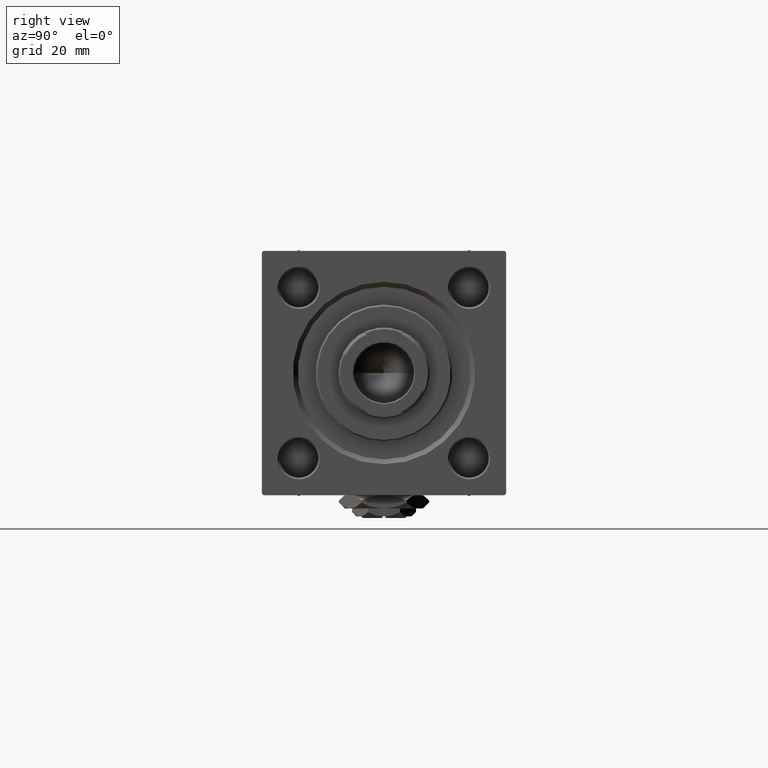
[diagram: clean part render]
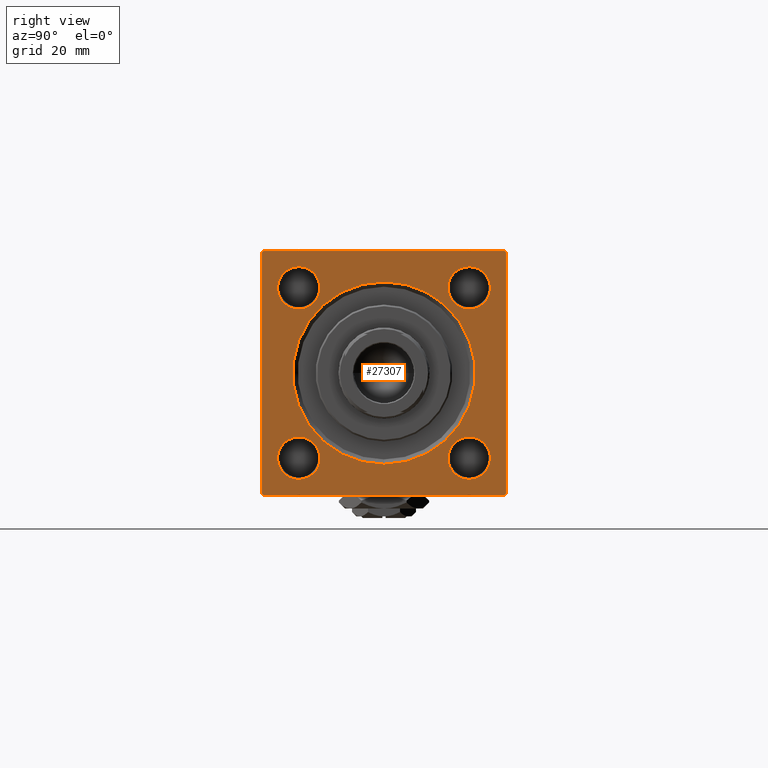
[diagram: same view with one face highlighted and labeled with its STEP entity id]
A machine part, right view. The second image highlights one B-rep face of the part: STEP entity #27307.
In plain terms, the highlighted planar face has unit normal (-1, 0, 0).
Its self-contained STEP definition (entity closure, byte-faithful):
#1252 = EDGE_LOOP ( 'NONE', ( #22753, #37451, #22392, #26973, #42237, #46377, #48737, #6245 ) ) ;
#1649 = LINE ( 'NONE', #9846, #22727 ) ;
#1694 = AXIS2_PLACEMENT_3D ( 'NONE', #10106, #23290, #23036 ) ;
#1922 = DIRECTION ( 'NONE',  ( 0.000000000000000000, -1.000000000000000000, 0.000000000000000000 ) ) ;
#1964 = LINE ( 'NONE', #48995, #18085 ) ;
#2540 = FACE_BOUND ( 'NONE', #13015, .T. ) ;
#2809 = FACE_BOUND ( 'NONE', #12003, .T. ) ;
#3051 = CARTESIAN_POINT ( 'NONE',  ( 154.0000000000000000, 26.14999999999999858, -19.65000000000002345 ) ) ;
#3061 = CARTESIAN_POINT ( 'NONE',  ( 154.0000000000000000, 0.000000000000000000, 0.000000000000000000 ) ) ;
#3225 = CIRCLE ( 'NONE', #36123, 6.500000000000008882 ) ;
#3255 = CARTESIAN_POINT ( 'NONE',  ( 154.0000000000000000, -26.14999999999999147, 32.64999999999999858 ) ) ;
#3514 = EDGE_CURVE ( 'NONE', #50004, #19110, #16631, .T. ) ;
#3538 = CARTESIAN_POINT ( 'NONE',  ( 154.0000000000000000, 26.14999999999999858, 19.64999999999999503 ) ) ;
#3941 = CARTESIAN_POINT ( 'NONE',  ( 154.0000000000000000, 0.000000000000000000, 0.000000000000000000 ) ) ;
#4171 = ORIENTED_EDGE ( 'NONE', *, *, #4856, .T. ) ;
#4390 = DIRECTION ( 'NONE',  ( 0.000000000000000000, 0.000000000000000000, 1.000000000000000000 ) ) ;
#4856 = EDGE_CURVE ( 'NONE', #45857, #31603, #3225, .T. ) ;
#4898 = VECTOR ( 'NONE', #19908, 1000.000000000000000 ) ;
#4918 = EDGE_CURVE ( 'NONE', #19315, #20440, #23457, .T. ) ;
#5115 = CIRCLE ( 'NONE', #13565, 6.499999999999974243 ) ;
#5155 = CARTESIAN_POINT ( 'NONE',  ( 154.0000000000000000, 26.14999999999999858, 26.15000000000000213 ) ) ;
#5311 = DIRECTION ( 'NONE',  ( -1.000000000000000000, -0.000000000000000000, 0.000000000000000000 ) ) ;
#5332 = AXIS2_PLACEMENT_3D ( 'NONE', #23823, #39968, #18330 ) ;
#5485 = CARTESIAN_POINT ( 'NONE',  ( 154.0000000000000000, 3.429011037612588881E-15, 27.99999999999999645 ) ) ;
#6245 = ORIENTED_EDGE ( 'NONE', *, *, #9565, .T. ) ;
#6444 = EDGE_LOOP ( 'NONE', ( #10683, #43559 ) ) ;
#6758 = CIRCLE ( 'NONE', #1694, 6.500000000000002665 ) ;
#7180 = VERTEX_POINT ( 'NONE', #16719 ) ;
#7591 = DIRECTION ( 'NONE',  ( 0.000000000000000000, -9.251858538542972814E-17, -1.000000000000000000 ) ) ;
#8668 = VERTEX_POINT ( 'NONE', #13327 ) ;
#8851 = EDGE_CURVE ( 'NONE', #20345, #47080, #35786, .T. ) ;
#9565 = EDGE_CURVE ( 'NONE', #47080, #8668, #9977, .T. ) ;
#9720 = EDGE_LOOP ( 'NONE', ( #47328, #46288 ) ) ;
#9846 = CARTESIAN_POINT ( 'NONE',  ( 154.0000000000000000, 37.50000000000000000, -37.50000000000000000 ) ) ;
#9977 = LINE ( 'NONE', #26087, #11672 ) ;
#10106 = CARTESIAN_POINT ( 'NONE',  ( 154.0000000000000000, -26.14999999999999147, 26.14999999999999503 ) ) ;
#10204 = ORIENTED_EDGE ( 'NONE', *, *, #43730, .T. ) ;
#10240 = CARTESIAN_POINT ( 'NONE',  ( 154.0000000000000000, 37.00000000000000000, 37.49999999999999289 ) ) ;
#10470 = FACE_BOUND ( 'NONE', #9720, .T. ) ;
#10605 = CARTESIAN_POINT ( 'NONE',  ( 154.0000000000000000, -26.15000000000000213, -26.15000000000000213 ) ) ;
#10683 = ORIENTED_EDGE ( 'NONE', *, *, #14428, .T. ) ;
#10720 = EDGE_CURVE ( 'NONE', #8668, #43300, #32411, .T. ) ;
#10724 = FACE_BOUND ( 'NONE', #39182, .T. ) ;
#10807 = CARTESIAN_POINT ( 'NONE',  ( 154.0000000000000000, -26.15000000000000213, -32.64999999999998437 ) ) ;
#11072 = VERTEX_POINT ( 'NONE', #11913 ) ;
#11117 = VECTOR ( 'NONE', #24836, 1000.000000000000000 ) ;
#11254 = AXIS2_PLACEMENT_3D ( 'NONE', #37294, #5311, #20384 ) ;
#11356 = DIRECTION ( 'NONE',  ( 0.000000000000000000, 0.000000000000000000, 1.000000000000000000 ) ) ;
#11672 = VECTOR ( 'NONE', #17623, 1000.000000000000114 ) ;
#11913 = CARTESIAN_POINT ( 'NONE',  ( 154.0000000000000000, -26.14999999999999147, 19.64999999999999503 ) ) ;
#12003 = EDGE_LOOP ( 'NONE', ( #32856, #23876 ) ) ;
#12499 = DIRECTION ( 'NONE',  ( -0.000000000000000000, 0.7071067811865425767, 0.7071067811865525687 ) ) ;
#13015 = EDGE_LOOP ( 'NONE', ( #4171, #37393 ) ) ;
#13311 = CARTESIAN_POINT ( 'NONE',  ( 154.0000000000000000, -26.15000000000000213, -19.65000000000002345 ) ) ;
#13327 = CARTESIAN_POINT ( 'NONE',  ( 154.0000000000000000, -37.50000000000000000, 36.99999999999995026 ) ) ;
#13565 = AXIS2_PLACEMENT_3D ( 'NONE', #10605, #48864, #43887 ) ;
#13579 = DIRECTION ( 'NONE',  ( 0.000000000000000000, -0.7071067811865474617, 0.7071067811865474617 ) ) ;
#13605 = DIRECTION ( 'NONE',  ( 0.000000000000000000, 0.000000000000000000, 1.000000000000000000 ) ) ;
#14068 = EDGE_CURVE ( 'NONE', #11072, #38879, #6758, .T. ) ;
#14428 = EDGE_CURVE ( 'NONE', #23294, #23674, #21098, .T. ) ;
#14456 = CARTESIAN_POINT ( 'NONE',  ( 154.0000000000000000, 26.14999999999999858, -32.64999999999998437 ) ) ;
#14693 = FACE_OUTER_BOUND ( 'NONE', #1252, .T. ) ;
#15096 = EDGE_CURVE ( 'NONE', #23674, #23294, #35497, .T. ) ;
#15243 = AXIS2_PLACEMENT_3D ( 'NONE', #17698, #37547, #45209 ) ;
#15711 = DIRECTION ( 'NONE',  ( 0.000000000000000000, 0.7071067811865671127, -0.7071067811865279218 ) ) ;
#16266 = VERTEX_POINT ( 'NONE', #49631 ) ;
#16631 = LINE ( 'NONE', #32750, #11117 ) ;
#16719 = CARTESIAN_POINT ( 'NONE',  ( 154.0000000000000000, 37.00000000000000000, -37.50000000000000000 ) ) ;
#16896 = DIRECTION ( 'NONE',  ( 0.000000000000000000, 0.000000000000000000, 1.000000000000000000 ) ) ;
#16917 = EDGE_CURVE ( 'NONE', #43300, #16266, #51919, .T. ) ;
#17623 = DIRECTION ( 'NONE',  ( -0.000000000000000000, -0.7071067811865474617, -0.7071067811865474617 ) ) ;
#17698 = CARTESIAN_POINT ( 'NONE',  ( 154.0000000000000000, 0.000000000000000000, 0.000000000000000000 ) ) ;
#18085 = VECTOR ( 'NONE', #13579, 1000.000000000000114 ) ;
#18330 = DIRECTION ( 'NONE',  ( 0.000000000000000000, 0.000000000000000000, 1.000000000000000000 ) ) ;
#19110 = VERTEX_POINT ( 'NONE', #51730 ) ;
#19315 = VERTEX_POINT ( 'NONE', #3051 ) ;
#19441 = ORIENTED_EDGE ( 'NONE', *, *, #41392, .T. ) ;
#19908 = DIRECTION ( 'NONE',  ( 0.000000000000000000, -1.000000000000000000, -1.850371707708594316E-16 ) ) ;
#20037 = DIRECTION ( 'NONE',  ( -1.000000000000000000, -0.000000000000000000, 0.000000000000000000 ) ) ;
#20345 = VERTEX_POINT ( 'NONE', #10240 ) ;
#20384 = DIRECTION ( 'NONE',  ( 0.000000000000000000, 0.000000000000000000, 1.000000000000000000 ) ) ;
#20440 = VERTEX_POINT ( 'NONE', #14456 ) ;
#21098 = CIRCLE ( 'NONE', #27876, 27.99999999999999645 ) ;
#21788 = DIRECTION ( 'NONE',  ( -1.000000000000000000, -0.000000000000000000, 0.000000000000000000 ) ) ;
#21950 = EDGE_CURVE ( 'NONE', #38879, #11072, #34018, .T. ) ;
#22346 = PLANE ( 'NONE',  #38341 ) ;
#22392 = ORIENTED_EDGE ( 'NONE', *, *, #41135, .F. ) ;
#22727 = VECTOR ( 'NONE', #1922, 1000.000000000000000 ) ;
#22753 = ORIENTED_EDGE ( 'NONE', *, *, #10720, .T. ) ;
#23036 = DIRECTION ( 'NONE',  ( 0.000000000000000000, 0.000000000000000000, 1.000000000000000000 ) ) ;
#23290 = DIRECTION ( 'NONE',  ( -1.000000000000000000, -0.000000000000000000, 0.000000000000000000 ) ) ;
#23294 = VERTEX_POINT ( 'NONE', #43974 ) ;
#23457 = CIRCLE ( 'NONE', #51317, 6.499999999999974243 ) ;
#23674 = VERTEX_POINT ( 'NONE', #5485 ) ;
#23823 = CARTESIAN_POINT ( 'NONE',  ( 154.0000000000000000, 26.14999999999999858, -26.15000000000000213 ) ) ;
#23876 = ORIENTED_EDGE ( 'NONE', *, *, #4918, .T. ) ;
#24760 = CIRCLE ( 'NONE', #5332, 6.499999999999974243 ) ;
#24836 = DIRECTION ( 'NONE',  ( 0.000000000000000000, 0.000000000000000000, -1.000000000000000000 ) ) ;
#26087 = CARTESIAN_POINT ( 'NONE',  ( 154.0000000000000000, -37.50000000000000000, 36.99999999999995026 ) ) ;
#26251 = CARTESIAN_POINT ( 'NONE',  ( 154.0000000000000000, -37.50000000000000711, -37.00000000000000711 ) ) ;
#26973 = ORIENTED_EDGE ( 'NONE', *, *, #45983, .T. ) ;
#27307 = ADVANCED_FACE ( 'NONE', ( #2540, #10470, #10724, #2809, #35035, #14693 ), #22346, .F. ) ;
#27602 = EDGE_CURVE ( 'NONE', #50004, #20345, #1964, .T. ) ;
#27876 = AXIS2_PLACEMENT_3D ( 'NONE', #3941, #20037, #11356 ) ;
#28446 = EDGE_CURVE ( 'NONE', #31603, #45857, #48505, .T. ) ;
#28689 = CARTESIAN_POINT ( 'NONE',  ( 154.0000000000000000, -37.50000000000000000, 37.49999999999997868 ) ) ;
#29372 = DIRECTION ( 'NONE',  ( 0.000000000000000000, 0.000000000000000000, 1.000000000000000000 ) ) ;
#29619 = CARTESIAN_POINT ( 'NONE',  ( 154.0000000000000000, 26.14999999999999858, 32.65000000000001279 ) ) ;
#29848 = DIRECTION ( 'NONE',  ( -1.000000000000000000, -0.000000000000000000, 0.000000000000000000 ) ) ;
#30481 = VECTOR ( 'NONE', #12499, 999.9999999999998863 ) ;
#31603 = VERTEX_POINT ( 'NONE', #29619 ) ;
#32043 = CIRCLE ( 'NONE', #39657, 6.499999999999974243 ) ;
#32411 = LINE ( 'NONE', #28689, #47162 ) ;
#32750 = CARTESIAN_POINT ( 'NONE',  ( 154.0000000000000000, 37.50000000000000000, 37.49999999999999289 ) ) ;
#32827 = CARTESIAN_POINT ( 'NONE',  ( 154.0000000000000000, 37.50000000000000000, -36.99999999999999289 ) ) ;
#32856 = ORIENTED_EDGE ( 'NONE', *, *, #50299, .T. ) ;
#34018 = CIRCLE ( 'NONE', #11254, 6.500000000000002665 ) ;
#35035 = FACE_BOUND ( 'NONE', #6444, .T. ) ;
#35497 = CIRCLE ( 'NONE', #15243, 27.99999999999999645 ) ;
#35786 = LINE ( 'NONE', #51106, #4898 ) ;
#36108 = DIRECTION ( 'NONE',  ( -1.000000000000000000, -0.000000000000000000, 0.000000000000000000 ) ) ;
#36123 = AXIS2_PLACEMENT_3D ( 'NONE', #5155, #36108, #4390 ) ;
#37294 = CARTESIAN_POINT ( 'NONE',  ( 154.0000000000000000, -26.14999999999999147, 26.14999999999999503 ) ) ;
#37393 = ORIENTED_EDGE ( 'NONE', *, *, #28446, .T. ) ;
#37451 = ORIENTED_EDGE ( 'NONE', *, *, #16917, .T. ) ;
#37547 = DIRECTION ( 'NONE',  ( -1.000000000000000000, -0.000000000000000000, 0.000000000000000000 ) ) ;
#38113 = VECTOR ( 'NONE', #15711, 1000.000000000000000 ) ;
#38198 = CARTESIAN_POINT ( 'NONE',  ( 154.0000000000000000, 26.14999999999999858, -26.15000000000000213 ) ) ;
#38341 = AXIS2_PLACEMENT_3D ( 'NONE', #3061, #38486, #39016 ) ;
#38486 = DIRECTION ( 'NONE',  ( -1.000000000000000000, -0.000000000000000000, 0.000000000000000000 ) ) ;
#38879 = VERTEX_POINT ( 'NONE', #3255 ) ;
#39016 = DIRECTION ( 'NONE',  ( 0.000000000000000000, 0.000000000000000000, 1.000000000000000000 ) ) ;
#39182 = EDGE_LOOP ( 'NONE', ( #19441, #10204 ) ) ;
#39657 = AXIS2_PLACEMENT_3D ( 'NONE', #45984, #29848, #16896 ) ;
#39968 = DIRECTION ( 'NONE',  ( -1.000000000000000000, -0.000000000000000000, 0.000000000000000000 ) ) ;
#40337 = CARTESIAN_POINT ( 'NONE',  ( 154.0000000000000000, 37.50000000000000000, 36.99999999999999289 ) ) ;
#40459 = VERTEX_POINT ( 'NONE', #10807 ) ;
#40893 = AXIS2_PLACEMENT_3D ( 'NONE', #45775, #48941, #29372 ) ;
#41135 = EDGE_CURVE ( 'NONE', #7180, #16266, #1649, .T. ) ;
#41392 = EDGE_CURVE ( 'NONE', #40459, #43204, #32043, .T. ) ;
#42237 = ORIENTED_EDGE ( 'NONE', *, *, #3514, .F. ) ;
#43204 = VERTEX_POINT ( 'NONE', #13311 ) ;
#43300 = VERTEX_POINT ( 'NONE', #26251 ) ;
#43559 = ORIENTED_EDGE ( 'NONE', *, *, #15096, .T. ) ;
#43730 = EDGE_CURVE ( 'NONE', #43204, #40459, #5115, .T. ) ;
#43887 = DIRECTION ( 'NONE',  ( 0.000000000000000000, 0.000000000000000000, 1.000000000000000000 ) ) ;
#43974 = CARTESIAN_POINT ( 'NONE',  ( 154.0000000000000000, 0.000000000000000000, -27.99999999999999645 ) ) ;
#44189 = CARTESIAN_POINT ( 'NONE',  ( 154.0000000000000000, -36.99999999999997158, 37.49999999999997868 ) ) ;
#44735 = LINE ( 'NONE', #32827, #30481 ) ;
#45209 = DIRECTION ( 'NONE',  ( 0.000000000000000000, 0.000000000000000000, 1.000000000000000000 ) ) ;
#45775 = CARTESIAN_POINT ( 'NONE',  ( 154.0000000000000000, 26.14999999999999858, 26.15000000000000213 ) ) ;
#45857 = VERTEX_POINT ( 'NONE', #3538 ) ;
#45983 = EDGE_CURVE ( 'NONE', #7180, #19110, #44735, .T. ) ;
#45984 = CARTESIAN_POINT ( 'NONE',  ( 154.0000000000000000, -26.15000000000000213, -26.15000000000000213 ) ) ;
#46288 = ORIENTED_EDGE ( 'NONE', *, *, #21950, .T. ) ;
#46377 = ORIENTED_EDGE ( 'NONE', *, *, #27602, .T. ) ;
#47080 = VERTEX_POINT ( 'NONE', #44189 ) ;
#47162 = VECTOR ( 'NONE', #7591, 1000.000000000000000 ) ;
#47328 = ORIENTED_EDGE ( 'NONE', *, *, #14068, .T. ) ;
#47942 = CARTESIAN_POINT ( 'NONE',  ( 154.0000000000000000, -36.99999999999998579, -37.50000000000000000 ) ) ;
#48505 = CIRCLE ( 'NONE', #40893, 6.500000000000008882 ) ;
#48737 = ORIENTED_EDGE ( 'NONE', *, *, #8851, .T. ) ;
#48864 = DIRECTION ( 'NONE',  ( -1.000000000000000000, -0.000000000000000000, 0.000000000000000000 ) ) ;
#48941 = DIRECTION ( 'NONE',  ( -1.000000000000000000, -0.000000000000000000, 0.000000000000000000 ) ) ;
#48995 = CARTESIAN_POINT ( 'NONE',  ( 154.0000000000000000, 37.00000000000000000, 37.49999999999999289 ) ) ;
#49631 = CARTESIAN_POINT ( 'NONE',  ( 154.0000000000000000, -36.99999999999998579, -37.50000000000000000 ) ) ;
#50004 = VERTEX_POINT ( 'NONE', #40337 ) ;
#50299 = EDGE_CURVE ( 'NONE', #20440, #19315, #24760, .T. ) ;
#51106 = CARTESIAN_POINT ( 'NONE',  ( 154.0000000000000000, 37.50000000000000000, 37.49999999999999289 ) ) ;
#51317 = AXIS2_PLACEMENT_3D ( 'NONE', #38198, #21788, #13605 ) ;
#51730 = CARTESIAN_POINT ( 'NONE',  ( 154.0000000000000000, 37.50000000000000000, -36.99999999999999289 ) ) ;
#51919 = LINE ( 'NONE', #47942, #38113 ) ;